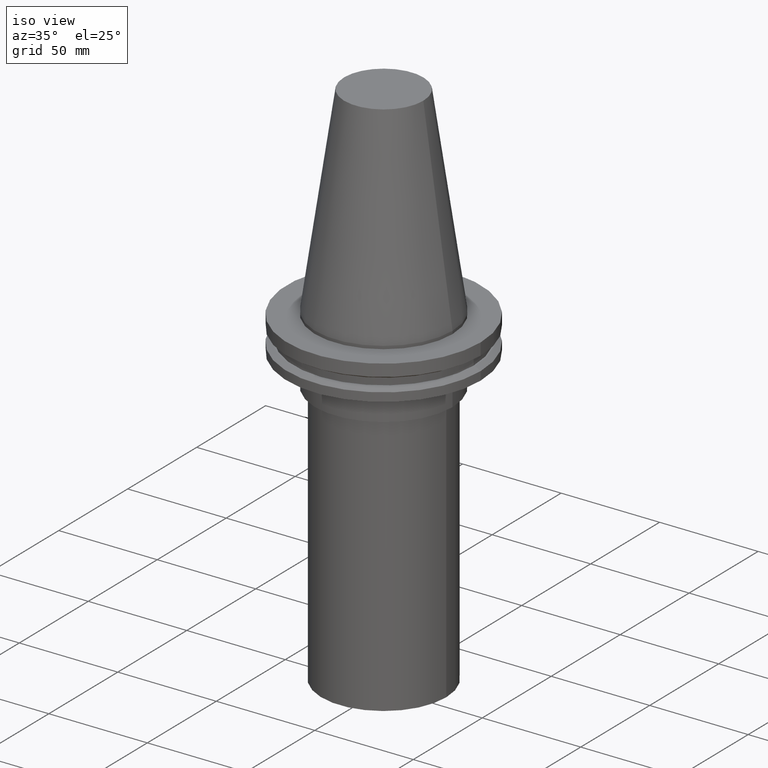
[diagram: clean part render]
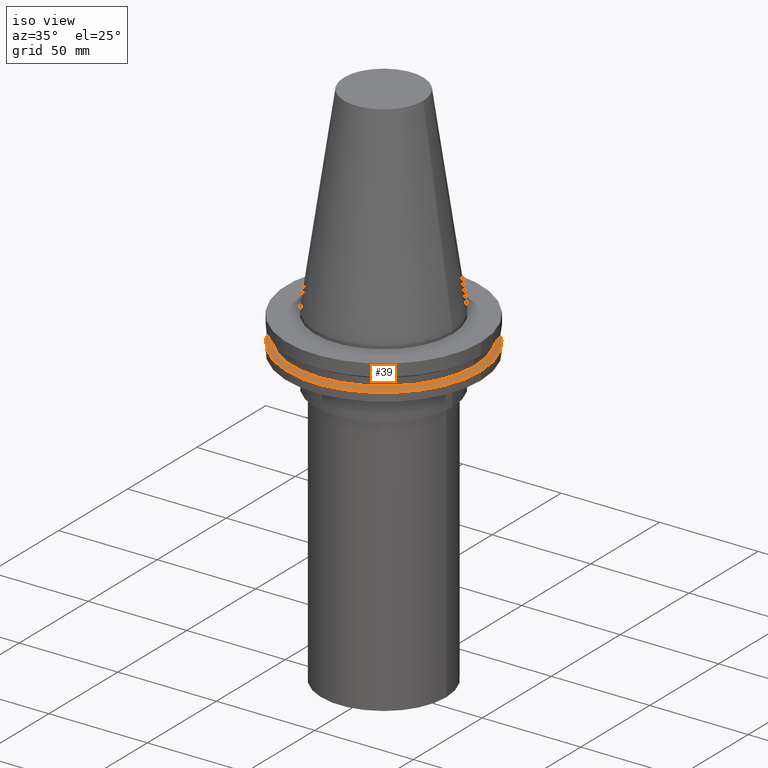
[diagram: same view with one face highlighted and labeled with its STEP entity id]
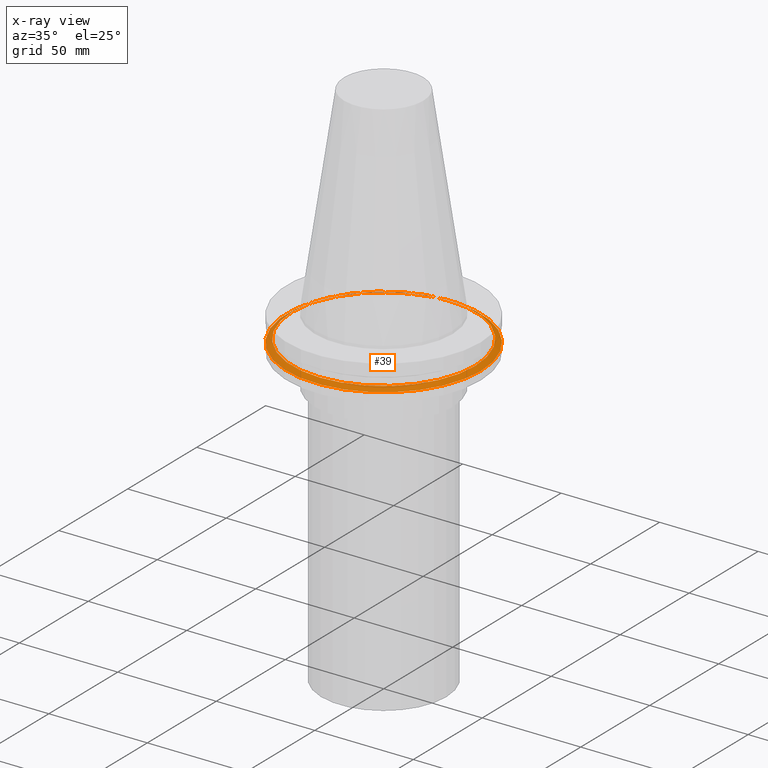
[diagram: x-ray of the same camera — body ghosted, the highlighted face saturated]
A machine part, iso view. The second image highlights one B-rep face of the part: STEP entity #39.
The next image is the same camera in x-ray: the body ghosted, the highlighted face saturated — about 4% of this face is hidden behind the body in this view.
In plain terms, the highlighted conical surface has half-angle 60 deg.
Its self-contained STEP definition (entity closure, byte-faithful):
#29 = CIRCLE ( 'NONE', #271, 46.43919780457007818 ) ;
#33 = EDGE_LOOP ( 'NONE', ( #96 ) ) ;
#39 = ADVANCED_FACE ( 'NONE', ( #390, #356 ), #214, .T. ) ;
#78 = DIRECTION ( 'NONE',  ( -1.000000000000000000, 0.000000000000000000, 0.000000000000000000 ) ) ;
#86 = DIRECTION ( 'NONE',  ( 0.000000000000000000, 0.000000000000000000, -1.000000000000000000 ) ) ;
#88 = AXIS2_PLACEMENT_3D ( 'NONE', #244, #86, #78 ) ;
#95 = CARTESIAN_POINT ( 'NONE',  ( 46.43919780457007818, 0.000000000000000000, -13.05499999999999794 ) ) ;
#96 = ORIENTED_EDGE ( 'NONE', *, *, #265, .T. ) ;
#153 = CIRCLE ( 'NONE', #227, 49.21499999999998920 ) ;
#154 = ORIENTED_EDGE ( 'NONE', *, *, #210, .F. ) ;
#163 = CARTESIAN_POINT ( 'NONE',  ( 49.21499999999998920, 0.000000000000000000, -14.65761014474876944 ) ) ;
#192 = DIRECTION ( 'NONE',  ( 1.000000000000000000, 0.000000000000000000, 0.000000000000000000 ) ) ;
#210 = EDGE_CURVE ( 'NONE', #343, #343, #29, .T. ) ;
#214 = CONICAL_SURFACE ( 'NONE', #88, 49.21499999999998920, 1.047197551196554333 ) ;
#222 = VERTEX_POINT ( 'NONE', #163 ) ;
#227 = AXIS2_PLACEMENT_3D ( 'NONE', #317, #284, #192 ) ;
#244 = CARTESIAN_POINT ( 'NONE',  ( 0.000000000000000000, 0.000000000000000000, -14.65761014474876944 ) ) ;
#250 = DIRECTION ( 'NONE',  ( 1.000000000000000000, 0.000000000000000000, 0.000000000000000000 ) ) ;
#265 = EDGE_CURVE ( 'NONE', #222, #222, #153, .T. ) ;
#271 = AXIS2_PLACEMENT_3D ( 'NONE', #281, #395, #250 ) ;
#281 = CARTESIAN_POINT ( 'NONE',  ( 0.000000000000000000, 0.000000000000000000, -13.05499999999999794 ) ) ;
#284 = DIRECTION ( 'NONE',  ( -0.000000000000000000, -0.000000000000000000, 1.000000000000000000 ) ) ;
#317 = CARTESIAN_POINT ( 'NONE',  ( 0.000000000000000000, 0.000000000000000000, -14.65761014474876944 ) ) ;
#343 = VERTEX_POINT ( 'NONE', #95 ) ;
#356 = FACE_OUTER_BOUND ( 'NONE', #33, .T. ) ;
#373 = EDGE_LOOP ( 'NONE', ( #154 ) ) ;
#390 = FACE_BOUND ( 'NONE', #373, .T. ) ;
#395 = DIRECTION ( 'NONE',  ( -0.000000000000000000, -0.000000000000000000, 1.000000000000000000 ) ) ;